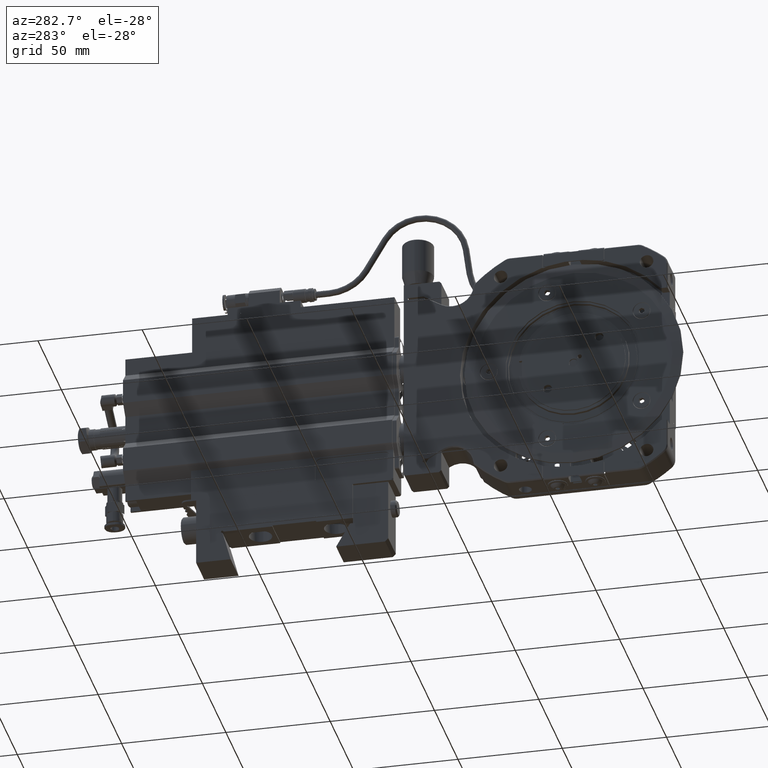
[diagram: clean part render]
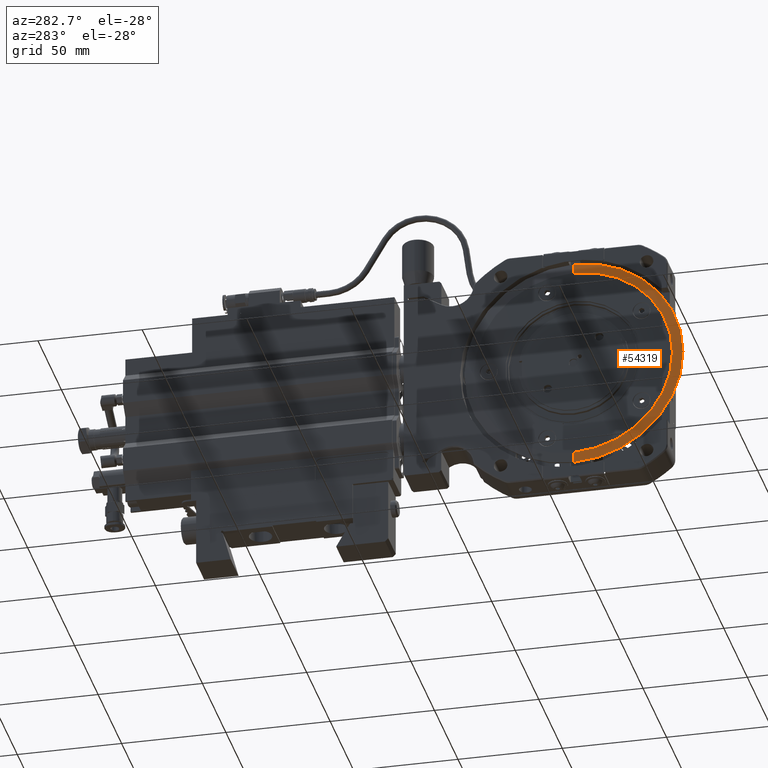
[diagram: same view with one face highlighted and labeled with its STEP entity id]
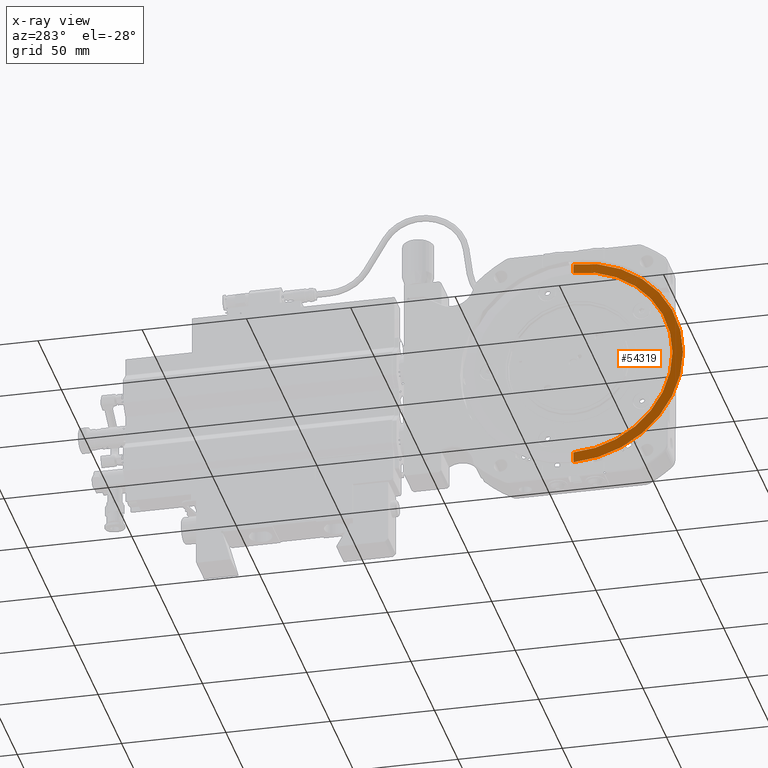
[diagram: x-ray of the same camera — body ghosted, the highlighted face saturated]
A machine part, auxiliary view. The second image highlights one B-rep face of the part: STEP entity #54319.
The next image is the same camera in x-ray: the body ghosted, the highlighted face saturated — about 0% of this face is hidden behind the body in this view.
In plain terms, the highlighted conical surface has half-angle 83 deg.
Its self-contained STEP definition (entity closure, byte-faithful):
#1043 = DIRECTION ( 'NONE',  ( 0.1218693434051477120, 0.000000000000000000, -0.9925461516413219831 ) ) ;
#2634 = CARTESIAN_POINT ( 'NONE',  ( -0.3622047244094396268, -0.09684252173074514580, -1.869120026493730435 ) ) ;
#2735 = VECTOR ( 'NONE', #1043, 39.37007874015748143 ) ;
#6564 = EDGE_CURVE ( 'NONE', #28144, #13638, #13737, .T. ) ;
#7594 = CARTESIAN_POINT ( 'NONE',  ( -0.3385815718487646953, -0.09684252173074489600, 2.065401095933268927 ) ) ;
#7977 = FACE_OUTER_BOUND ( 'NONE', #9066, .T. ) ;
#7981 = EDGE_CURVE ( 'NONE', #24127, #44360, #39567, .T. ) ;
#8041 = DIRECTION ( 'NONE',  ( 0.000000000000000000, 0.000000000000000000, 1.000000000000000000 ) ) ;
#8219 = CIRCLE ( 'NONE', #33691, 1.871062992125984259 ) ;
#9066 = EDGE_LOOP ( 'NONE', ( #12261, #32894, #17309, #45769 ) ) ;
#9858 = CARTESIAN_POINT ( 'NONE',  ( -0.3622047244094396268, -0.09684252173074514580, 0.001942965632253575723 ) ) ;
#12070 = EDGE_CURVE ( 'NONE', #44360, #13638, #53995, .T. ) ;
#12261 = ORIENTED_EDGE ( 'NONE', *, *, #6564, .F. ) ;
#13638 = VERTEX_POINT ( 'NONE', #7594 ) ;
#13737 = LINE ( 'NONE', #22213, #39708 ) ;
#15720 = DIRECTION ( 'NONE',  ( -1.000000000000000000, -0.000000000000000000, -0.000000000000000000 ) ) ;
#17309 = ORIENTED_EDGE ( 'NONE', *, *, #7981, .T. ) ;
#17352 = CARTESIAN_POINT ( 'NONE',  ( -0.3385815718487646953, -0.09684252173074514580, 0.001942965632253575723 ) ) ;
#19466 = CARTESIAN_POINT ( 'NONE',  ( -0.3385815718487646953, -0.09684252173074514580, -2.061515164668761280 ) ) ;
#20765 = DIRECTION ( 'NONE',  ( 1.000000000000000000, 0.000000000000000000, 0.000000000000000000 ) ) ;
#22213 = CARTESIAN_POINT ( 'NONE',  ( -0.3385815718487646953, -0.09684252173074489600, 2.065401095933268927 ) ) ;
#22935 = CARTESIAN_POINT ( 'NONE',  ( -0.3622047244094396268, -0.09684252173074490988, 1.873005957758237860 ) ) ;
#24127 = VERTEX_POINT ( 'NONE', #2634 ) ;
#28144 = VERTEX_POINT ( 'NONE', #22935 ) ;
#28339 = DIRECTION ( 'NONE',  ( 0.000000000000000000, 0.000000000000000000, 1.000000000000000000 ) ) ;
#31833 = CONICAL_SURFACE ( 'NONE', #33703, 2.063458130301015103, 1.448623279155293320 ) ;
#31874 = DIRECTION ( 'NONE',  ( 0.000000000000000000, 0.000000000000000000, -1.000000000000000000 ) ) ;
#32894 = ORIENTED_EDGE ( 'NONE', *, *, #37308, .F. ) ;
#33691 = AXIS2_PLACEMENT_3D ( 'NONE', #9858, #40598, #28339 ) ;
#33703 = AXIS2_PLACEMENT_3D ( 'NONE', #17352, #20765, #31874 ) ;
#35334 = CARTESIAN_POINT ( 'NONE',  ( -0.3385815718487646953, -0.09684252173074514580, -2.061515164668761280 ) ) ;
#37308 = EDGE_CURVE ( 'NONE', #24127, #28144, #8219, .T. ) ;
#39567 = LINE ( 'NONE', #35334, #2735 ) ;
#39708 = VECTOR ( 'NONE', #47579, 39.37007874015748143 ) ;
#40598 = DIRECTION ( 'NONE',  ( -1.000000000000000000, -0.000000000000000000, -0.000000000000000000 ) ) ;
#44360 = VERTEX_POINT ( 'NONE', #19466 ) ;
#45769 = ORIENTED_EDGE ( 'NONE', *, *, #12070, .T. ) ;
#47019 = CARTESIAN_POINT ( 'NONE',  ( -0.3385815718487646953, -0.09684252173074514580, 0.001942965632253575723 ) ) ;
#47579 = DIRECTION ( 'NONE',  ( 0.1218693434051477120, 1.215518467613568319E-16, 0.9925461516413219831 ) ) ;
#48550 = AXIS2_PLACEMENT_3D ( 'NONE', #47019, #15720, #8041 ) ;
#53995 = CIRCLE ( 'NONE', #48550, 2.063458130301015103 ) ;
#54319 = ADVANCED_FACE ( 'NONE', ( #7977 ), #31833, .T. ) ;